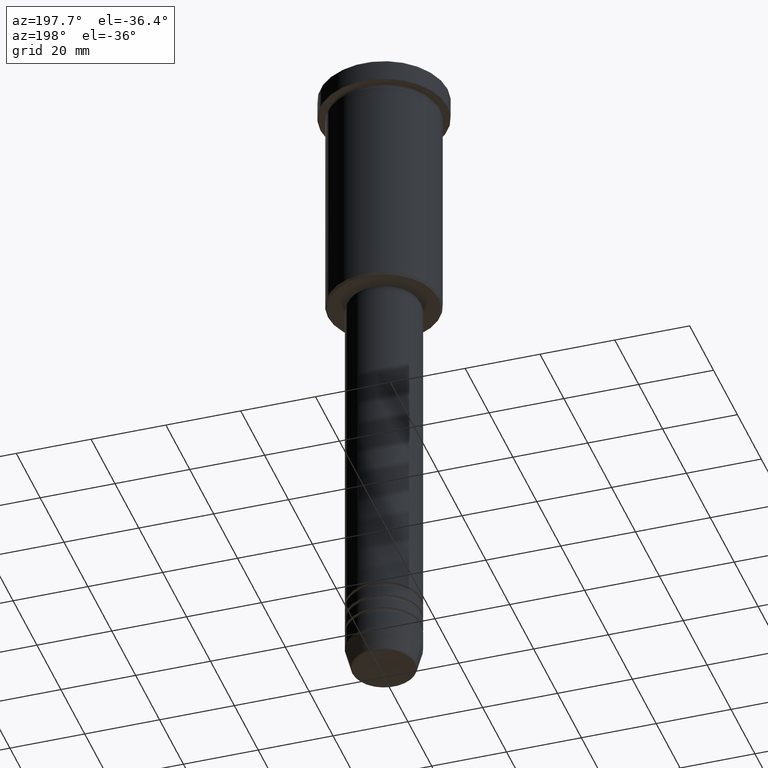
[diagram: clean part render]
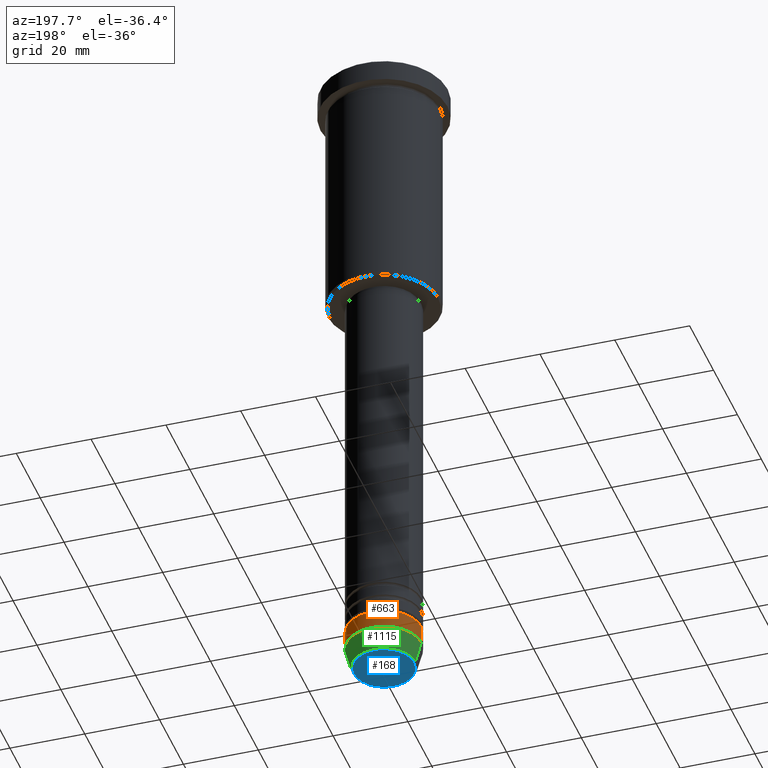
[diagram: same view with three faces highlighted in distinct colors, each labeled with its STEP entity id]
A machine part, auxiliary view with three faces highlighted in distinct colors.
Their STEP definitions:

[orange] entity #663 — the highlighted cylindrical surface (partial cylindrical patch) has radius 10 mm, axis along (-0, -0, 1).
#33 = VERTEX_POINT ( 'NONE', #1024 ) ;
#47 = CARTESIAN_POINT ( 'NONE',  ( 0.000000000000000000, 0.000000000000000000, -169.0000000000000000 ) ) ;
#112 = CIRCLE ( 'NONE', #779, 10.00000000000000000 ) ;
#144 = ORIENTED_EDGE ( 'NONE', *, *, #246, .F. ) ;
#196 = CARTESIAN_POINT ( 'NONE',  ( 10.00000000000000000, 0.000000000000000000, -169.0000000000000000 ) ) ;
#211 = CIRCLE ( 'NONE', #323, 10.00000000000000178 ) ;
#246 = EDGE_CURVE ( 'NONE', #439, #1019, #112, .T. ) ;
#276 = LINE ( 'NONE', #716, #1168 ) ;
#306 = FACE_OUTER_BOUND ( 'NONE', #1034, .T. ) ;
#323 = AXIS2_PLACEMENT_3D ( 'NONE', #476, #1131, #865 ) ;
#398 = CARTESIAN_POINT ( 'NONE',  ( 0.000000000000000000, 0.000000000000000000, 0.000000000000000000 ) ) ;
#406 = DIRECTION ( 'NONE',  ( -0.000000000000000000, -0.000000000000000000, 1.000000000000000000 ) ) ;
#439 = VERTEX_POINT ( 'NONE', #196 ) ;
#476 = CARTESIAN_POINT ( 'NONE',  ( 0.000000000000000000, 0.000000000000000000, -174.0000000000000284 ) ) ;
#520 = EDGE_CURVE ( 'NONE', #878, #1019, #923, .T. ) ;
#544 = CARTESIAN_POINT ( 'NONE',  ( -10.00000000000000000, 1.224646799147353256E-15, -169.0000000000000000 ) ) ;
#556 = DIRECTION ( 'NONE',  ( -0.000000000000000000, -0.000000000000000000, 1.000000000000000000 ) ) ;
#576 = ORIENTED_EDGE ( 'NONE', *, *, #520, .T. ) ;
#578 = DIRECTION ( 'NONE',  ( -0.000000000000000000, -0.000000000000000000, 1.000000000000000000 ) ) ;
#663 = ADVANCED_FACE ( 'NONE', ( #306 ), #1026, .T. ) ;
#707 = ORIENTED_EDGE ( 'NONE', *, *, #1098, .T. ) ;
#716 = CARTESIAN_POINT ( 'NONE',  ( 10.00000000000000178, 0.000000000000000000, 0.000000000000000000 ) ) ;
#719 = DIRECTION ( 'NONE',  ( -0.000000000000000000, -0.000000000000000000, 1.000000000000000000 ) ) ;
#779 = AXIS2_PLACEMENT_3D ( 'NONE', #47, #406, #857 ) ;
#806 = CARTESIAN_POINT ( 'NONE',  ( -10.00000000000000178, 1.224646799147353454E-15, -174.0000000000000284 ) ) ;
#857 = DIRECTION ( 'NONE',  ( 1.000000000000000000, 0.000000000000000000, 0.000000000000000000 ) ) ;
#865 = DIRECTION ( 'NONE',  ( 1.000000000000000000, 0.000000000000000000, 0.000000000000000000 ) ) ;
#878 = VERTEX_POINT ( 'NONE', #806 ) ;
#923 = LINE ( 'NONE', #933, #1031 ) ;
#933 = CARTESIAN_POINT ( 'NONE',  ( -10.00000000000000178, 1.224646799147353454E-15, 0.000000000000000000 ) ) ;
#953 = DIRECTION ( 'NONE',  ( 1.000000000000000000, 0.000000000000000000, 0.000000000000000000 ) ) ;
#967 = EDGE_CURVE ( 'NONE', #33, #439, #276, .T. ) ;
#1019 = VERTEX_POINT ( 'NONE', #544 ) ;
#1024 = CARTESIAN_POINT ( 'NONE',  ( 10.00000000000000178, 0.000000000000000000, -174.0000000000000284 ) ) ;
#1026 = CYLINDRICAL_SURFACE ( 'NONE', #1073, 10.00000000000000178 ) ;
#1031 = VECTOR ( 'NONE', #556, 1000.000000000000000 ) ;
#1034 = EDGE_LOOP ( 'NONE', ( #707, #576, #144, #1148 ) ) ;
#1073 = AXIS2_PLACEMENT_3D ( 'NONE', #398, #578, #953 ) ;
#1098 = EDGE_CURVE ( 'NONE', #33, #878, #211, .T. ) ;
#1131 = DIRECTION ( 'NONE',  ( -0.000000000000000000, -0.000000000000000000, 1.000000000000000000 ) ) ;
#1148 = ORIENTED_EDGE ( 'NONE', *, *, #967, .F. ) ;
#1168 = VECTOR ( 'NONE', #719, 1000.000000000000000 ) ;

[blue] entity #168 — the highlighted planar face has unit normal (0, -0, 1).
#26 = CARTESIAN_POINT ( 'NONE',  ( 0.000000000000000000, 0.000000000000000000, -180.0000000000000000 ) ) ;
#109 = EDGE_CURVE ( 'NONE', #130, #512, #585, .T. ) ;
#130 = VERTEX_POINT ( 'NONE', #1133 ) ;
#168 = ADVANCED_FACE ( 'NONE', ( #1049 ), #227, .F. ) ;
#187 = CARTESIAN_POINT ( 'NONE',  ( -8.008641351423790411, 1.010348648938494750E-15, -180.0000000000000000 ) ) ;
#210 = AXIS2_PLACEMENT_3D ( 'NONE', #214, #764, #949 ) ;
#214 = CARTESIAN_POINT ( 'NONE',  ( 0.000000000000000000, 0.000000000000000000, -180.0000000000000000 ) ) ;
#215 = DIRECTION ( 'NONE',  ( 0.000000000000000000, -0.000000000000000000, 1.000000000000000000 ) ) ;
#227 = PLANE ( 'NONE',  #1128 ) ;
#261 = CIRCLE ( 'NONE', #210, 8.008641351423790411 ) ;
#461 = DIRECTION ( 'NONE',  ( 0.000000000000000000, 0.000000000000000000, -1.000000000000000000 ) ) ;
#512 = VERTEX_POINT ( 'NONE', #187 ) ;
#585 = CIRCLE ( 'NONE', #1050, 8.008641351423790411 ) ;
#603 = EDGE_CURVE ( 'NONE', #512, #130, #261, .T. ) ;
#642 = ORIENTED_EDGE ( 'NONE', *, *, #109, .T. ) ;
#693 = EDGE_LOOP ( 'NONE', ( #642, #1010 ) ) ;
#751 = DIRECTION ( 'NONE',  ( 1.000000000000000000, 0.000000000000000000, 0.000000000000000000 ) ) ;
#764 = DIRECTION ( 'NONE',  ( 0.000000000000000000, 0.000000000000000000, -1.000000000000000000 ) ) ;
#829 = DIRECTION ( 'NONE',  ( 1.000000000000000000, 0.000000000000000000, 0.000000000000000000 ) ) ;
#949 = DIRECTION ( 'NONE',  ( 1.000000000000000000, 0.000000000000000000, 0.000000000000000000 ) ) ;
#1004 = CARTESIAN_POINT ( 'NONE',  ( 0.000000000000000000, 0.000000000000000000, -180.0000000000000000 ) ) ;
#1010 = ORIENTED_EDGE ( 'NONE', *, *, #603, .T. ) ;
#1049 = FACE_OUTER_BOUND ( 'NONE', #693, .T. ) ;
#1050 = AXIS2_PLACEMENT_3D ( 'NONE', #1004, #461, #829 ) ;
#1128 = AXIS2_PLACEMENT_3D ( 'NONE', #26, #215, #751 ) ;
#1133 = CARTESIAN_POINT ( 'NONE',  ( 8.008641351423790411, 0.000000000000000000, -180.0000000000000000 ) ) ;

[green] entity #1115 — the highlighted conical surface has half-angle 15 deg.
#33 = VERTEX_POINT ( 'NONE', #1024 ) ;
#36 = CARTESIAN_POINT ( 'NONE',  ( -8.491604264568326954, 1.132284198685157767E-15, -179.6294095225512422 ) ) ;
#60 = EDGE_CURVE ( 'NONE', #628, #878, #563, .T. ) ;
#159 = DIRECTION ( 'NONE',  ( 0.2588190451025214611, 0.000000000000000000, 0.9659258262890680902 ) ) ;
#161 = ORIENTED_EDGE ( 'NONE', *, *, #854, .F. ) ;
#172 = CIRCLE ( 'NONE', #536, 8.491604264568326954 ) ;
#211 = CIRCLE ( 'NONE', #323, 10.00000000000000178 ) ;
#228 = VECTOR ( 'NONE', #159, 1000.000000000000000 ) ;
#239 = LINE ( 'NONE', #332, #228 ) ;
#292 = DIRECTION ( 'NONE',  ( -0.000000000000000000, -0.000000000000000000, 1.000000000000000000 ) ) ;
#314 = EDGE_CURVE ( 'NONE', #789, #628, #172, .T. ) ;
#323 = AXIS2_PLACEMENT_3D ( 'NONE', #476, #1131, #865 ) ;
#332 = CARTESIAN_POINT ( 'NONE',  ( 10.00000000000000178, 0.000000000000000000, -174.0000000000000284 ) ) ;
#476 = CARTESIAN_POINT ( 'NONE',  ( 0.000000000000000000, 0.000000000000000000, -174.0000000000000284 ) ) ;
#535 = DIRECTION ( 'NONE',  ( 1.000000000000000000, 0.000000000000000000, 0.000000000000000000 ) ) ;
#536 = AXIS2_PLACEMENT_3D ( 'NONE', #1064, #800, #535 ) ;
#563 = LINE ( 'NONE', #934, #687 ) ;
#628 = VERTEX_POINT ( 'NONE', #36 ) ;
#687 = VECTOR ( 'NONE', #912, 1000.000000000000000 ) ;
#743 = CONICAL_SURFACE ( 'NONE', #863, 10.00000000000000178, 0.2617993877991501850 ) ;
#749 = CARTESIAN_POINT ( 'NONE',  ( 0.000000000000000000, 0.000000000000000000, -174.0000000000000284 ) ) ;
#789 = VERTEX_POINT ( 'NONE', #1159 ) ;
#800 = DIRECTION ( 'NONE',  ( -0.000000000000000000, -0.000000000000000000, 1.000000000000000000 ) ) ;
#806 = CARTESIAN_POINT ( 'NONE',  ( -10.00000000000000178, 1.224646799147353454E-15, -174.0000000000000284 ) ) ;
#854 = EDGE_CURVE ( 'NONE', #789, #33, #239, .T. ) ;
#863 = AXIS2_PLACEMENT_3D ( 'NONE', #749, #292, #1025 ) ;
#865 = DIRECTION ( 'NONE',  ( 1.000000000000000000, 0.000000000000000000, 0.000000000000000000 ) ) ;
#878 = VERTEX_POINT ( 'NONE', #806 ) ;
#912 = DIRECTION ( 'NONE',  ( -0.2588190451025214611, 3.169619151431773569E-17, 0.9659258262890680902 ) ) ;
#934 = CARTESIAN_POINT ( 'NONE',  ( -10.00000000000000178, 1.224646799147353454E-15, -174.0000000000000284 ) ) ;
#947 = EDGE_LOOP ( 'NONE', ( #975, #971, #1143, #161 ) ) ;
#971 = ORIENTED_EDGE ( 'NONE', *, *, #60, .T. ) ;
#975 = ORIENTED_EDGE ( 'NONE', *, *, #314, .T. ) ;
#1024 = CARTESIAN_POINT ( 'NONE',  ( 10.00000000000000178, 0.000000000000000000, -174.0000000000000284 ) ) ;
#1025 = DIRECTION ( 'NONE',  ( 1.000000000000000000, 0.000000000000000000, 0.000000000000000000 ) ) ;
#1064 = CARTESIAN_POINT ( 'NONE',  ( 0.000000000000000000, 0.000000000000000000, -179.6294095225512422 ) ) ;
#1098 = EDGE_CURVE ( 'NONE', #33, #878, #211, .T. ) ;
#1112 = FACE_OUTER_BOUND ( 'NONE', #947, .T. ) ;
#1115 = ADVANCED_FACE ( 'NONE', ( #1112 ), #743, .T. ) ;
#1131 = DIRECTION ( 'NONE',  ( -0.000000000000000000, -0.000000000000000000, 1.000000000000000000 ) ) ;
#1143 = ORIENTED_EDGE ( 'NONE', *, *, #1098, .F. ) ;
#1159 = CARTESIAN_POINT ( 'NONE',  ( 8.491604264568326954, 0.000000000000000000, -179.6294095225512422 ) ) ;